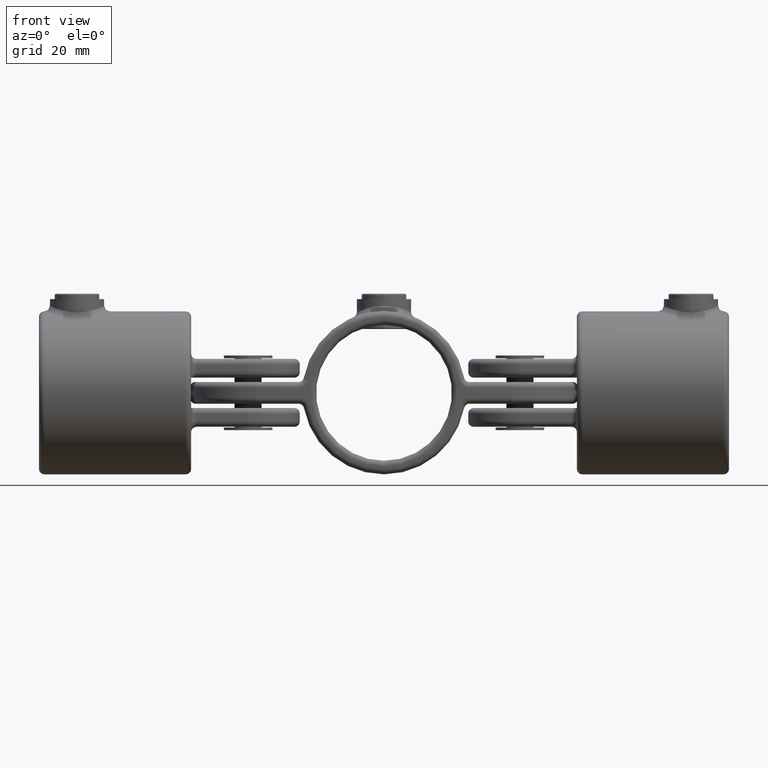
[diagram: clean part render]
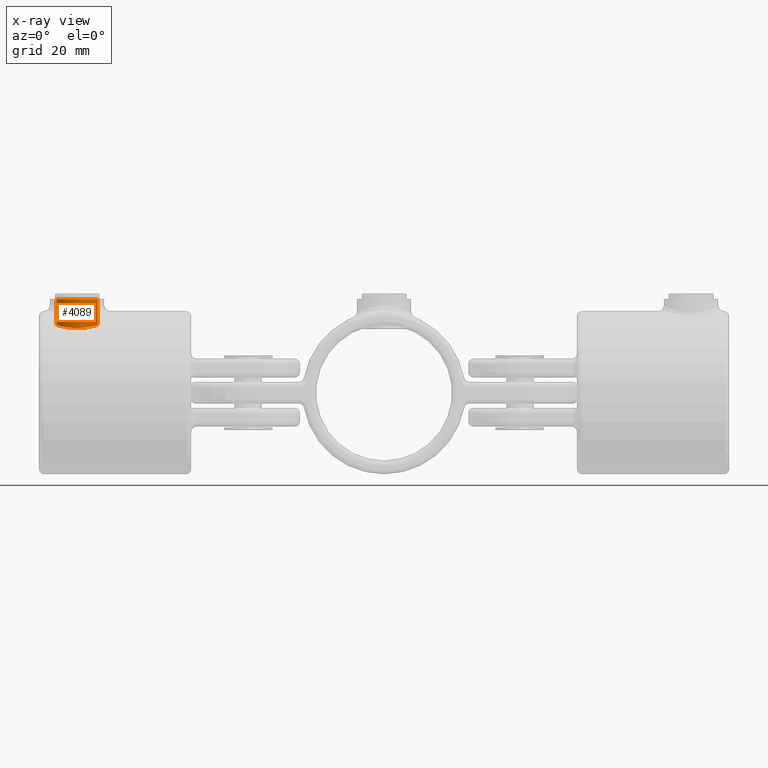
[diagram: x-ray — body ghosted, one internal face saturated and labeled with its STEP entity id]
A machine part, front view, then the same camera in x-ray: the body is ghosted and one INTERNAL B-rep face — a face not visible from any outside direction — is saturated and labeled: STEP entity #4089.
In plain terms, the highlighted cylindrical surface (bore or boss wall) has radius 7.625 mm, axis along (0, 0, 1).
Its self-contained STEP definition (entity closure, byte-faithful):
#3 = CARTESIAN_POINT ( 'NONE',  ( 5.040554526462234008, 19.74262615698711443, 24.48920166236200657 ) ) ;
#15 = CARTESIAN_POINT ( 'NONE',  ( -7.637240855225110536, 13.99693461799786753, 23.80487799466420640 ) ) ;
#24 = CARTESIAN_POINT ( 'NONE',  ( -3.833767512333933869, 20.60964602901278653, 24.70781290257801643 ) ) ;
#54 = CARTESIAN_POINT ( 'NONE',  ( 3.824793484731127791, 20.61536953270597650, 24.70930600292920332 ) ) ;
#77 = CARTESIAN_POINT ( 'NONE',  ( -0.2531567682109402417, 21.62493822422565160, 24.99998115838934254 ) ) ;
#92 = CARTESIAN_POINT ( 'NONE',  ( 6.847703879782134351, 10.60901534812212788, 24.04472748351471623 ) ) ;
#119 = CARTESIAN_POINT ( 'NONE',  ( 6.198552640534421343, 9.552486101007611197, 24.21979310777088301 ) ) ;
#240 = CARTESIAN_POINT ( 'NONE',  ( 5.565872056497591203, 8.782459759072324346, 24.37320412377327372 ) ) ;
#259 = VERTEX_POINT ( 'NONE', #1784 ) ;
#333 = VERTEX_POINT ( 'NONE', #852 ) ;
#374 = CARTESIAN_POINT ( 'NONE',  ( 0.5057099828704491040, 6.375329113042521811, 24.99989962054146275 ) ) ;
#610 = CARTESIAN_POINT ( 'NONE',  ( 7.624999999999986677, 13.49298530435347132, 23.80880876902496723 ) ) ;
#654 = CARTESIAN_POINT ( 'NONE',  ( 6.197905396656483212, 18.44841277033919624, 24.21995874737854848 ) ) ;
#667 = DIRECTION ( 'NONE',  ( -0.000000000000000000, -0.000000000000000000, 1.000000000000000000 ) ) ;
#677 = CIRCLE ( 'NONE', #4035, 7.624999999999987566 ) ;
#786 = DIRECTION ( 'NONE',  ( -0.000000000000000000, -0.000000000000000000, 1.000000000000000000 ) ) ;
#852 = CARTESIAN_POINT ( 'NONE',  ( 7.624999999999985789, 14.00000000000000000, 23.80880876902497079 ) ) ;
#862 = ORIENTED_EDGE ( 'NONE', *, *, #1106, .T. ) ;
#917 = EDGE_LOOP ( 'NONE', ( #1014 ) ) ;
#935 = CARTESIAN_POINT ( 'NONE',  ( -5.746456444308760680, 19.03651626538896124, 24.33326843753104995 ) ) ;
#939 = CARTESIAN_POINT ( 'NONE',  ( -2.461853608082956502, 6.765917713638602393, 24.88286969601451304 ) ) ;
#983 = CARTESIAN_POINT ( 'NONE',  ( -6.059972305749162125, 18.65442036758613398, 24.25609593163331112 ) ) ;
#1014 = ORIENTED_EDGE ( 'NONE', *, *, #2383, .T. ) ;
#1050 = CARTESIAN_POINT ( 'NONE',  ( 6.613380367851307895, 10.17232916946265320, 24.11109562406747031 ) ) ;
#1106 = EDGE_CURVE ( 'NONE', #333, #333, #2314, .T. ) ;
#1183 = CARTESIAN_POINT ( 'NONE',  ( -7.526922525258538776, 15.24489144085758952, 23.84005278734266042 ) ) ;
#1225 = CARTESIAN_POINT ( 'NONE',  ( 0.000000000000000000, 14.00000000000000000, 34.49999999999999289 ) ) ;
#1236 = CARTESIAN_POINT ( 'NONE',  ( -1.984911021543396714, 6.620927443614977648, 24.92591712721057462 ) ) ;
#1347 = CARTESIAN_POINT ( 'NONE',  ( -4.447481860664471931, 7.801466709018609613, 24.60210313679656480 ) ) ;
#1444 = CARTESIAN_POINT ( 'NONE',  ( -5.218946202275239088, 19.56463239821131239, 24.44984722176352676 ) ) ;
#1455 = CARTESIAN_POINT ( 'NONE',  ( -1.008505099369353397, 21.56220618766865016, 24.98090808176182165 ) ) ;
#1480 = CARTESIAN_POINT ( 'NONE',  ( -2.466098943511461972, 21.23272292436416464, 24.88246860328219867 ) ) ;
#1520 = CARTESIAN_POINT ( 'NONE',  ( 0.000000000000000000, 14.00000000000000000, 34.49999999999999289 ) ) ;
#1665 = CARTESIAN_POINT ( 'NONE',  ( 5.041752346281429098, 8.258441854446846975, 24.48895214811045307 ) ) ;
#1679 = CARTESIAN_POINT ( 'NONE',  ( 3.827261590886247511, 7.386093951032468574, 24.70891558714927427 ) ) ;
#1743 = CARTESIAN_POINT ( 'NONE',  ( -7.525210577754441132, 12.74505800106580367, 23.84059330878520200 ) ) ;
#1784 = CARTESIAN_POINT ( 'NONE',  ( 7.624999999999987566, 14.00000000000000000, 34.49999999999999289 ) ) ;
#1824 = CARTESIAN_POINT ( 'NONE',  ( -3.384788619207254268, 7.162908973373579791, 24.77079655181746176 ) ) ;
#1886 = CARTESIAN_POINT ( 'NONE',  ( -1.255962326360806403, 21.52498085853641996, 24.96963198267716422 ) ) ;
#1902 = CARTESIAN_POINT ( 'NONE',  ( -5.744472966996822194, 8.961239353114425654, 24.33373670301735459 ) ) ;
#1919 = CARTESIAN_POINT ( 'NONE',  ( 2.462023428526834312, 21.22096142069221258, 24.87964535986256465 ) ) ;
#1942 = CARTESIAN_POINT ( 'NONE',  ( -6.612139478598758835, 17.82968730057731932, 24.11143018791297266 ) ) ;
#2006 = CARTESIAN_POINT ( 'NONE',  ( 6.612736129173790722, 17.82876949042400483, 24.11127232247210017 ) ) ;
#2046 = CARTESIAN_POINT ( 'NONE',  ( 7.574939601106295051, 12.99508855892532466, 23.82500341734852967 ) ) ;
#2062 = CARTESIAN_POINT ( 'NONE',  ( 7.624999999999984013, 13.99999999999999822, 23.80880876902496368 ) ) ;
#2153 = CARTESIAN_POINT ( 'NONE',  ( 4.659846650615252273, 7.943803693538968425, 24.56550976411218556 ) ) ;
#2164 = CARTESIAN_POINT ( 'NONE',  ( -7.232986855992657560, 16.46419246294571792, 23.93164149630685245 ) ) ;
#2314 = B_SPLINE_CURVE_WITH_KNOTS ( 'NONE', 3,
 ( #2062, #610, #2046, #4438, #4933, #5820, #2935, #92, #1050, #119, #3403, #3430, #240, #1665, #2153, #1679, #5494, #4001, #5992, #5036, #5911, #3226, #374, #3692, #3618, #1236, #939, #3712, #1824, #4267, #4750, #1347, #5642, #4205, #5664, #1902, #3362, #5269, #5717, #2418, #5789, #1743, #4787, #5781, #15, #4556, #4493, #1183, #4361, #2164, #4322, #1942, #983, #935, #1444, #5787, #4296, #2428, #24, #2866, #1480, #2367, #1886, #1455, #4767, #77, #4804, #3336, #5264, #5764, #1919, #2899, #5212, #54, #2448, #3, #3391, #4728, #4857, #654, #2006, #3460, #4415, #4919, #5402, #2560, #3044 ),
 .UNSPECIFIED., .T., .F.,
 ( 4, 2, 2, 2, 2, 2, 2, 2, 2, 2, 2, 2, 2, 2, 2, 2, 2, 2, 2, 2, 2, 2, 1, 2, 2, 2, 2, 2, 2, 2, 2, 2, 2, 2, 2, 2, 2, 2, 2, 2, 2, 2, 2, 4 ),
 ( 0.000000000000000000, 0.001498703355425742758, 0.002248055033138614354, 0.002997406710851486383, 0.004496110066277227840, 0.005245461743990097701, 0.005994813421702968430, 0.007493516777128714224, 0.008992220132554460885, 0.009741571810267335083, 0.01049092348798020928, 0.01198962684340595594, 0.01348833019883170260, 0.01498703355425744579, 0.01573638523197031999, 0.01648573690968319419, 0.01723508858739607186, 0.01798444026510894259, 0.01948314362053469792, 0.02098184697596045672, 0.02248055033138621206, 0.02322990200909908626, 0.02397925368681196046, 0.02472860536452483812, 0.02547795704223771579, 0.02697666039766345725, 0.02847536375308919523, 0.02997406710851494016, 0.03072341878622781436, 0.03147277046394068162, 0.03297147381936642307, 0.03447017717479216453, 0.03521952885250502485, 0.03596888053021789211, 0.03746758388564362663, 0.03821693556335649389, 0.03896628724106936115, 0.04046499059649510260, 0.04196369395192083018, 0.04271304562963370438, 0.04346239730734657858, 0.04496110066277231310, 0.04645980401819806149, 0.04795850737362380295 ),
 .UNSPECIFIED. ) ;
#2367 = CARTESIAN_POINT ( 'NONE',  ( -1.989256692887133582, 21.37781105451421482, 24.92554329743065011 ) ) ;
#2383 = EDGE_CURVE ( 'NONE', #259, #259, #677, .T. ) ;
#2418 = CARTESIAN_POINT ( 'NONE',  ( -7.231350745773565514, 11.53107924171802701, 23.93213718230494891 ) ) ;
#2428 = CARTESIAN_POINT ( 'NONE',  ( -4.450013709171526166, 20.19670438459455042, 24.60164274860608558 ) ) ;
#2448 = CARTESIAN_POINT ( 'NONE',  ( 4.658340416036723219, 20.05739414463143078, 24.56580373029862585 ) ) ;
#2560 = CARTESIAN_POINT ( 'NONE',  ( 7.624999999999980460, 14.50701469564652513, 23.80880876902496368 ) ) ;
#2729 = DIRECTION ( 'NONE',  ( 1.000000000000000000, 0.000000000000000000, 0.000000000000000000 ) ) ;
#2850 = FACE_OUTER_BOUND ( 'NONE', #4282, .T. ) ;
#2866 = CARTESIAN_POINT ( 'NONE',  ( -3.395356048079686495, 20.84583685217371851, 24.77277628969513046 ) ) ;
#2899 = CARTESIAN_POINT ( 'NONE',  ( 2.697035170712561936, 21.13642128081725247, 24.85517048456625133 ) ) ;
#2935 = CARTESIAN_POINT ( 'NONE',  ( 7.135450569502690854, 11.30032034237444627, 23.96028666805974439 ) ) ;
#3044 = CARTESIAN_POINT ( 'NONE',  ( 7.624999999999984013, 13.99999999999999822, 23.80880876902496368 ) ) ;
#3075 = CYLINDRICAL_SURFACE ( 'NONE', #4994, 7.624999999999985789 ) ;
#3226 = CARTESIAN_POINT ( 'NONE',  ( 1.002517140352034541, 6.424498978325214438, 24.98477028980511250 ) ) ;
#3336 = CARTESIAN_POINT ( 'NONE',  ( 0.9977691887047591690, 21.57603748124648746, 24.98493532761331082 ) ) ;
#3362 = CARTESIAN_POINT ( 'NONE',  ( -6.057882534485948156, 9.342924015651204783, 24.25661639321867469 ) ) ;
#3391 = CARTESIAN_POINT ( 'NONE',  ( 5.564973524399761118, 19.21850310922752669, 24.37341003370779546 ) ) ;
#3403 = CARTESIAN_POINT ( 'NONE',  ( 6.048749732343351226, 9.350773334685381855, 24.25776408206418111 ) ) ;
#3430 = CARTESIAN_POINT ( 'NONE',  ( 5.732390297541707369, 8.965878091797344851, 24.33446512792618321 ) ) ;
#3460 = CARTESIAN_POINT ( 'NONE',  ( 6.846823129338925895, 17.39260563976430873, 24.04497623410374985 ) ) ;
#3618 = CARTESIAN_POINT ( 'NONE',  ( -1.004392386508560664, 6.424923796438567258, 24.98464353017545037 ) ) ;
#3692 = CARTESIAN_POINT ( 'NONE',  ( -0.4957361993027355473, 6.374674148477804003, 25.00009938469495197 ) ) ;
#3712 = CARTESIAN_POINT ( 'NONE',  ( -3.157283311763474209, 7.054843539010122733, 24.80092828833986474 ) ) ;
#4001 = CARTESIAN_POINT ( 'NONE',  ( 2.701155206758634630, 6.865158317157445289, 24.85471741102222509 ) ) ;
#4035 = AXIS2_PLACEMENT_3D ( 'NONE', #1520, #667, #2729 ) ;
#4089 = ADVANCED_FACE ( 'NONE', ( #2850, #4560 ), #3075, .F. ) ;
#4205 = CARTESIAN_POINT ( 'NONE',  ( -5.030792869501234499, 8.264707833344072441, 24.48937507106243316 ) ) ;
#4267 = CARTESIAN_POINT ( 'NONE',  ( -3.823578514178740839, 7.398268783947568927, 24.70686955391471784 ) ) ;
#4282 = EDGE_LOOP ( 'NONE', ( #862 ) ) ;
#4296 = CARTESIAN_POINT ( 'NONE',  ( -4.648761521243384820, 20.04908387233547273, 24.56475787222399276 ) ) ;
#4322 = CARTESIAN_POINT ( 'NONE',  ( -6.851283675898569570, 17.38352705704664913, 24.04369929023161490 ) ) ;
#4361 = CARTESIAN_POINT ( 'NONE',  ( -7.378737004201018301, 15.98736881979527880, 23.88650159904019787 ) ) ;
#4415 = CARTESIAN_POINT ( 'NONE',  ( 7.230014589311891449, 16.47298383127513333, 23.93254600123859532 ) ) ;
#4438 = CARTESIAN_POINT ( 'NONE',  ( 7.428286400460846650, 12.26120181046476176, 23.87096951533384726 ) ) ;
#4493 = CARTESIAN_POINT ( 'NONE',  ( -7.563991461711618847, 14.99469888138134976, 23.82827509113422693 ) ) ;
#4556 = CARTESIAN_POINT ( 'NONE',  ( -7.612972345990198342, 14.49602898771760451, 23.81267126365295539 ) ) ;
#4559 = DIRECTION ( 'NONE',  ( 1.000000000000000000, 0.000000000000000000, 0.000000000000000000 ) ) ;
#4560 = FACE_OUTER_BOUND ( 'NONE', #917, .T. ) ;
#4728 = CARTESIAN_POINT ( 'NONE',  ( 5.731563743611702400, 19.03506446305435773, 24.33466015887329092 ) ) ;
#4750 = CARTESIAN_POINT ( 'NONE',  ( -4.036048993750373626, 7.526035342976405751, 24.67293825580087940 ) ) ;
#4767 = CARTESIAN_POINT ( 'NONE',  ( -0.5073330409539101860, 21.61227023599559871, 24.99610898340867493 ) ) ;
#4787 = CARTESIAN_POINT ( 'NONE',  ( -7.562875551298477994, 12.99663239399499837, 23.82862968581559926 ) ) ;
#4804 = CARTESIAN_POINT ( 'NONE',  ( 0.5007108719245220163, 21.62512286543175932, 25.00003747395566833 ) ) ;
#4857 = CARTESIAN_POINT ( 'NONE',  ( 6.048023593877464243, 18.65017286798012464, 24.25794547365545384 ) ) ;
#4919 = CARTESIAN_POINT ( 'NONE',  ( 7.378724766867550855, 15.98621578252345365, 23.88650222741974005 ) ) ;
#4933 = CARTESIAN_POINT ( 'NONE',  ( 7.367383413625269384, 12.01874776858992533, 23.88990401013303710 ) ) ;
#4994 = AXIS2_PLACEMENT_3D ( 'NONE', #1225, #786, #4559 ) ;
#5036 = CARTESIAN_POINT ( 'NONE',  ( 1.987973315103579219, 6.634452307421960349, 24.92199381285342596 ) ) ;
#5212 = CARTESIAN_POINT ( 'NONE',  ( 3.386156229792327110, 20.84997084846986226, 24.77393670983870066 ) ) ;
#5264 = CARTESIAN_POINT ( 'NONE',  ( 1.735177294240059398, 21.42917225034852891, 24.94092608399477129 ) ) ;
#5269 = CARTESIAN_POINT ( 'NONE',  ( -6.609810204236294062, 10.16637161560983138, 24.11206728410836320 ) ) ;
#5402 = CARTESIAN_POINT ( 'NONE',  ( 7.574914569875134340, 15.00563491338717093, 23.82501284584765244 ) ) ;
#5494 = CARTESIAN_POINT ( 'NONE',  ( 3.388449417178507783, 7.151251449488690071, 24.77360043833567715 ) ) ;
#5642 = CARTESIAN_POINT ( 'NONE',  ( -4.646444025951357304, 7.949131380832150207, 24.56519745861407245 ) ) ;
#5664 = CARTESIAN_POINT ( 'NONE',  ( -5.216959178462506230, 8.433508707314306463, 24.45027126291933328 ) ) ;
#5717 = CARTESIAN_POINT ( 'NONE',  ( -6.849349150729525881, 10.61260874263449949, 24.04425170248523358 ) ) ;
#5764 = CARTESIAN_POINT ( 'NONE',  ( 1.980973935719693602, 21.36746804999788552, 24.92256116174950975 ) ) ;
#5781 = CARTESIAN_POINT ( 'NONE',  ( -7.612543128637529577, 13.49699795111164136, 23.81280872462432896 ) ) ;
#5787 = CARTESIAN_POINT ( 'NONE',  ( -5.032826739687862094, 19.73350280232121889, 24.48895604166633433 ) ) ;
#5789 = CARTESIAN_POINT ( 'NONE',  ( -7.376912470862640347, 12.00651510209456241, 23.88706546679601672 ) ) ;
#5820 = CARTESIAN_POINT ( 'NONE',  ( 7.221044020827888765, 11.53824818125508855, 23.93454355583152804 ) ) ;
#5911 = CARTESIAN_POINT ( 'NONE',  ( 1.741812975765805183, 6.572357682684393687, 24.94046980953268289 ) ) ;
#5992 = CARTESIAN_POINT ( 'NONE',  ( 2.466949535381540493, 6.780755531006975367, 24.87914736278856509 ) ) ;